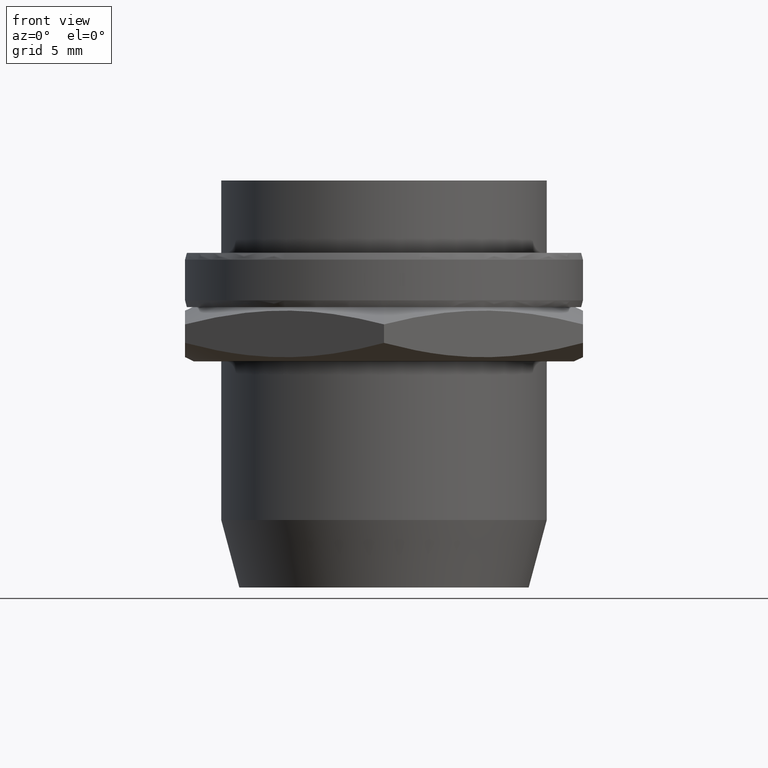
[diagram: clean part render]
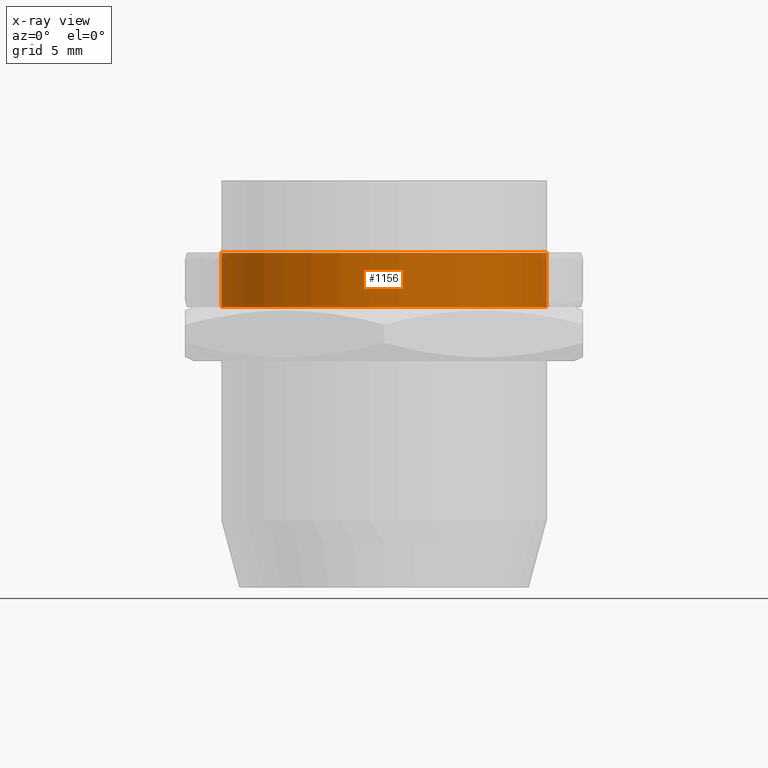
[diagram: x-ray — body ghosted, one internal face saturated and labeled with its STEP entity id]
A machine part, front view, then the same camera in x-ray: the body is ghosted and one INTERNAL B-rep face — a face not visible from any outside direction — is saturated and labeled: STEP entity #1156.
In plain terms, the highlighted cylindrical surface (bore or boss wall) has radius 9 mm, axis along (0, 0, 1).
Its self-contained STEP definition (entity closure, byte-faithful):
#710=CARTESIAN_POINT('',(-9.0,0.0,15.499999999999993));
#711=VERTEX_POINT('',#710);
#712=CARTESIAN_POINT('',(9.0,0.0,15.499999999999993));
#713=VERTEX_POINT('',#712);
#714=CARTESIAN_POINT('',(0.0,0.0,15.499999999999993));
#715=DIRECTION('',(0.0,0.0,-1.0));
#716=DIRECTION('',(1.0,0.0,0.0));
#717=AXIS2_PLACEMENT_3D('',#714,#715,#716);
#718=CIRCLE('',#717,9.0);
#719=EDGE_CURVE('',#711,#713,#718,.T.);
#721=CARTESIAN_POINT('',(0.0,0.0,15.499999999999993));
#722=DIRECTION('',(0.0,0.0,-1.0));
#723=DIRECTION('',(1.0,0.0,0.0));
#724=AXIS2_PLACEMENT_3D('',#721,#722,#723);
#725=CIRCLE('',#724,9.0);
#726=EDGE_CURVE('',#713,#711,#725,.T.);
#807=CARTESIAN_POINT('',(-9.0,0.0,18.499999999999993));
#808=VERTEX_POINT('',#807);
#809=CARTESIAN_POINT('',(9.0,0.0,18.499999999999993));
#810=VERTEX_POINT('',#809);
#811=CARTESIAN_POINT('',(0.0,0.0,18.499999999999993));
#812=DIRECTION('',(0.0,0.0,1.0));
#813=DIRECTION('',(1.0,0.0,0.0));
#814=AXIS2_PLACEMENT_3D('',#811,#812,#813);
#815=CIRCLE('',#814,9.0);
#816=EDGE_CURVE('',#808,#810,#815,.T.);
#818=CARTESIAN_POINT('',(0.0,0.0,18.499999999999993));
#819=DIRECTION('',(0.0,0.0,1.0));
#820=DIRECTION('',(1.0,0.0,0.0));
#821=AXIS2_PLACEMENT_3D('',#818,#819,#820);
#822=CIRCLE('',#821,9.0);
#823=EDGE_CURVE('',#810,#808,#822,.T.);
#1138=CARTESIAN_POINT('',(0.0,0.0,18.499999999999993));
#1139=DIRECTION('',(0.0,0.0,1.0));
#1140=DIRECTION('',(1.0,0.0,0.0));
#1141=AXIS2_PLACEMENT_3D('',#1138,#1139,#1140);
#1142=CYLINDRICAL_SURFACE('',#1141,9.0);
#1143=CARTESIAN_POINT('',(9.0,0.0,18.499999999999993));
#1144=DIRECTION('',(0.0,0.0,-1.0));
#1145=VECTOR('',#1144,3.0);
#1146=LINE('',#1143,#1145);
#1147=EDGE_CURVE('',#810,#713,#1146,.T.);
#1148=ORIENTED_EDGE('',*,*,#1147,.T.);
#1149=ORIENTED_EDGE('',*,*,#726,.T.);
#1150=ORIENTED_EDGE('',*,*,#719,.T.);
#1151=ORIENTED_EDGE('',*,*,#1147,.F.);
#1152=ORIENTED_EDGE('',*,*,#823,.T.);
#1153=ORIENTED_EDGE('',*,*,#816,.T.);
#1154=EDGE_LOOP('',(#1148,#1149,#1150,#1151,#1152,#1153));
#1155=FACE_OUTER_BOUND('',#1154,.T.);
#1156=ADVANCED_FACE('',(#1155),#1142,.F.);